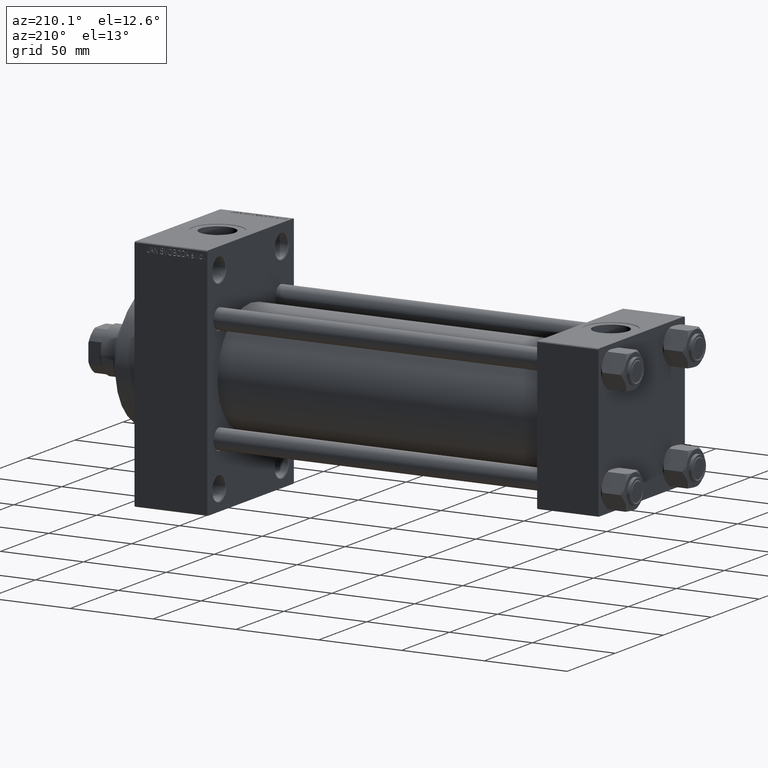
[diagram: clean part render]
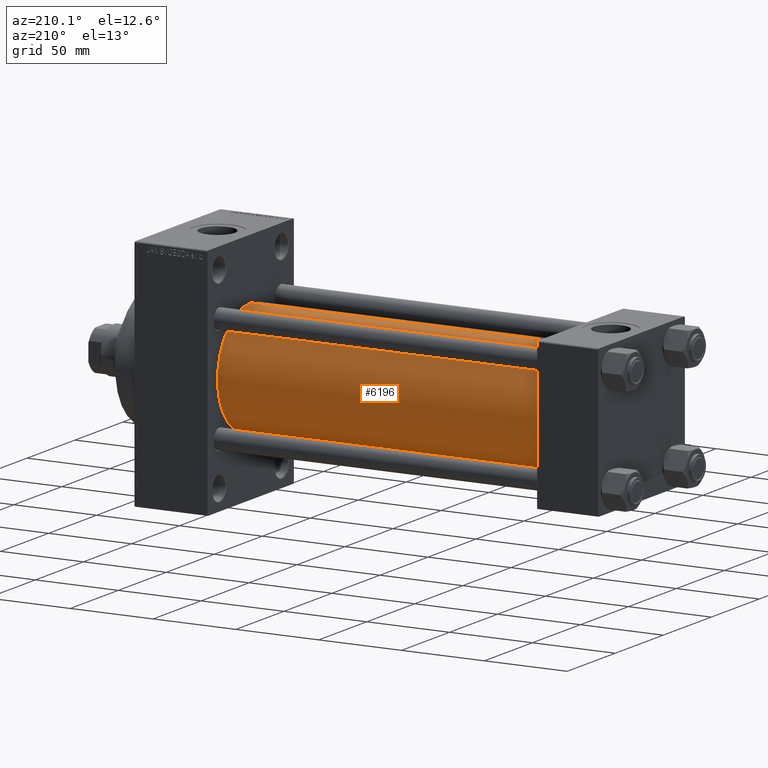
[diagram: same view with one face highlighted and labeled with its STEP entity id]
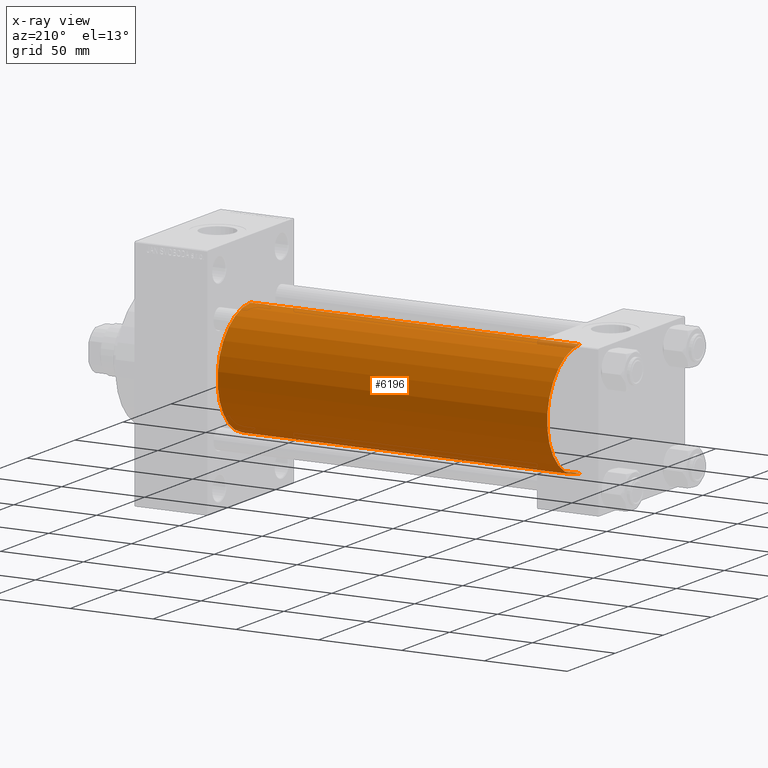
[diagram: x-ray of the same camera — body ghosted, the highlighted face saturated]
A machine part, auxiliary view. The second image highlights one B-rep face of the part: STEP entity #6196.
The next image is the same camera in x-ray: the body ghosted, the highlighted face saturated — about 1% of this face is hidden behind the body in this view.
In plain terms, the highlighted cylindrical surface (partial cylindrical patch) has radius 34.5 mm, axis along (-1, -0, -0).
Its self-contained STEP definition (entity closure, byte-faithful):
#356 = AXIS2_PLACEMENT_3D ( 'NONE', #24925, #21583, #3219 ) ;
#965 = VERTEX_POINT ( 'NONE', #24997 ) ;
#2222 = DIRECTION ( 'NONE',  ( 1.000000000000000000, 0.000000000000000000, 0.000000000000000000 ) ) ;
#2450 = CYLINDRICAL_SURFACE ( 'NONE', #5709, 34.50000000000000000 ) ;
#2922 = DIRECTION ( 'NONE',  ( -1.000000000000000000, -0.000000000000000000, -0.000000000000000000 ) ) ;
#3219 = DIRECTION ( 'NONE',  ( 0.000000000000000000, 0.000000000000000000, 1.000000000000000000 ) ) ;
#4780 = CARTESIAN_POINT ( 'NONE',  ( 236.0000000000000284, -2.602085213965210642E-15, 34.50000000000000000 ) ) ;
#5709 = AXIS2_PLACEMENT_3D ( 'NONE', #12944, #2922, #16998 ) ;
#6093 = CIRCLE ( 'NONE', #25898, 34.50000000000000000 ) ;
#6196 = ADVANCED_FACE ( 'NONE', ( #27728 ), #2450, .T. ) ;
#7611 = EDGE_CURVE ( 'NONE', #22128, #965, #15019, .T. ) ;
#10050 = DIRECTION ( 'NONE',  ( -1.000000000000000000, -0.000000000000000000, -0.000000000000000000 ) ) ;
#11696 = ORIENTED_EDGE ( 'NONE', *, *, #26907, .T. ) ;
#12575 = VECTOR ( 'NONE', #40544, 1000.000000000000000 ) ;
#12944 = CARTESIAN_POINT ( 'NONE',  ( 236.0000000000000284, -2.602085213965210642E-15, 0.000000000000000000 ) ) ;
#15019 = LINE ( 'NONE', #37656, #12575 ) ;
#15176 = VERTEX_POINT ( 'NONE', #44759 ) ;
#16588 = ORIENTED_EDGE ( 'NONE', *, *, #31604, .F. ) ;
#16998 = DIRECTION ( 'NONE',  ( 0.000000000000000000, 0.000000000000000000, 1.000000000000000000 ) ) ;
#18277 = VECTOR ( 'NONE', #10050, 1000.000000000000000 ) ;
#21583 = DIRECTION ( 'NONE',  ( 1.000000000000000000, -0.000000000000000000, 0.000000000000000000 ) ) ;
#22128 = VERTEX_POINT ( 'NONE', #4780 ) ;
#23108 = CIRCLE ( 'NONE', #356, 34.50000000000000000 ) ;
#23181 = ORIENTED_EDGE ( 'NONE', *, *, #7611, .F. ) ;
#24925 = CARTESIAN_POINT ( 'NONE',  ( 37.00000000000000711, -2.602085213965210642E-15, 0.000000000000000000 ) ) ;
#24997 = CARTESIAN_POINT ( 'NONE',  ( 37.00000000000000711, -2.602085213965210642E-15, 34.50000000000000000 ) ) ;
#25898 = AXIS2_PLACEMENT_3D ( 'NONE', #31543, #2222, #38726 ) ;
#26907 = EDGE_CURVE ( 'NONE', #45701, #15176, #38428, .T. ) ;
#27728 = FACE_OUTER_BOUND ( 'NONE', #44289, .T. ) ;
#28155 = CARTESIAN_POINT ( 'NONE',  ( 236.0000000000000284, 1.622946243093158675E-15, -34.50000000000000000 ) ) ;
#31543 = CARTESIAN_POINT ( 'NONE',  ( 236.0000000000000284, -2.602085213965210642E-15, 0.000000000000000000 ) ) ;
#31604 = EDGE_CURVE ( 'NONE', #45701, #22128, #6093, .T. ) ;
#32779 = CARTESIAN_POINT ( 'NONE',  ( 236.0000000000000284, 1.622946243093158675E-15, -34.50000000000000000 ) ) ;
#33114 = ORIENTED_EDGE ( 'NONE', *, *, #42075, .T. ) ;
#37656 = CARTESIAN_POINT ( 'NONE',  ( 236.0000000000000284, -2.602085213965210642E-15, 34.50000000000000000 ) ) ;
#38428 = LINE ( 'NONE', #28155, #18277 ) ;
#38726 = DIRECTION ( 'NONE',  ( 0.000000000000000000, 0.000000000000000000, -1.000000000000000000 ) ) ;
#40544 = DIRECTION ( 'NONE',  ( -1.000000000000000000, -0.000000000000000000, -0.000000000000000000 ) ) ;
#42075 = EDGE_CURVE ( 'NONE', #15176, #965, #23108, .T. ) ;
#44289 = EDGE_LOOP ( 'NONE', ( #16588, #11696, #33114, #23181 ) ) ;
#44759 = CARTESIAN_POINT ( 'NONE',  ( 37.00000000000000711, 1.622946243093158675E-15, -34.50000000000000000 ) ) ;
#45701 = VERTEX_POINT ( 'NONE', #32779 ) ;